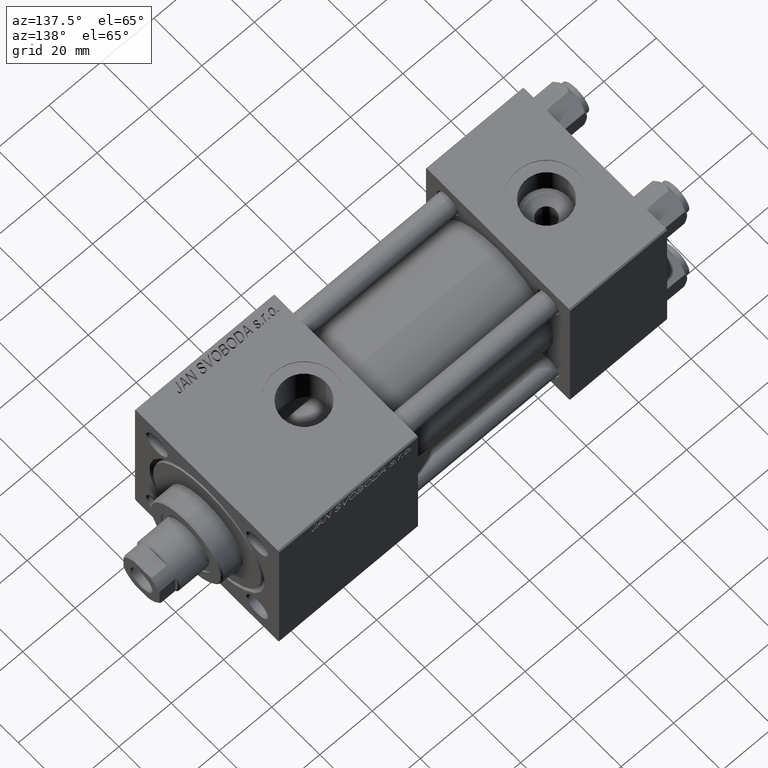
[diagram: clean part render]
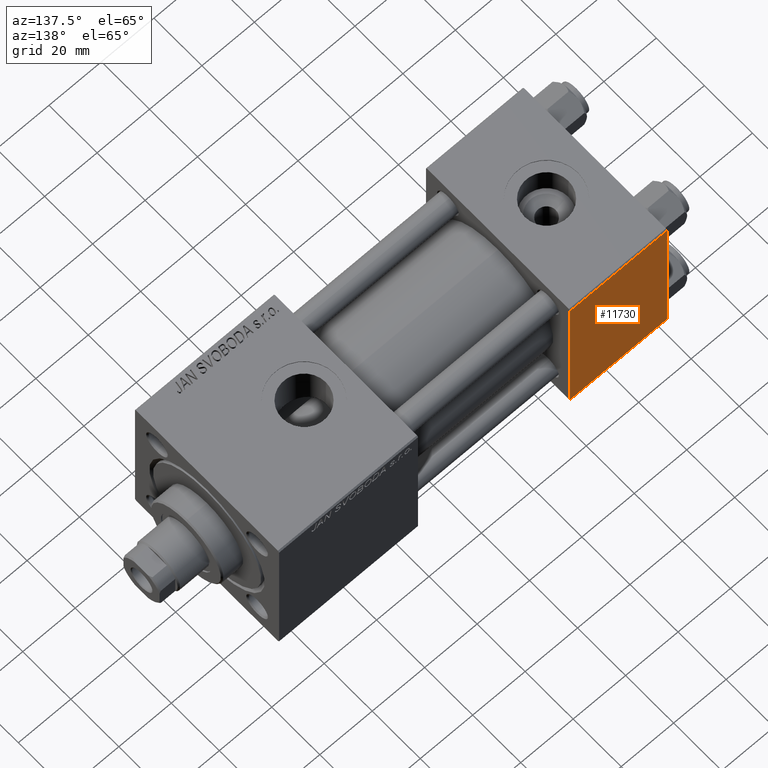
[diagram: same view with one face highlighted and labeled with its STEP entity id]
A machine part, auxiliary view. The second image highlights one B-rep face of the part: STEP entity #11730.
In plain terms, the highlighted planar face has unit normal (0, 1, 0).
Its self-contained STEP definition (entity closure, byte-faithful):
#1575 = VECTOR ( 'NONE', #38880, 1000.000000000000000 ) ;
#1720 = VERTEX_POINT ( 'NONE', #17487 ) ;
#1798 = EDGE_CURVE ( 'NONE', #1720, #18395, #34257, .T. ) ;
#2511 = DIRECTION ( 'NONE',  ( 0.000000000000000000, 0.000000000000000000, -1.000000000000000000 ) ) ;
#7672 = VECTOR ( 'NONE', #27604, 1000.000000000000000 ) ;
#11730 = ADVANCED_FACE ( 'NONE', ( #40892 ), #23848, .T. ) ;
#12562 = DIRECTION ( 'NONE',  ( -0.000000000000000000, 1.000000000000000000, 0.000000000000000000 ) ) ;
#12662 = ORIENTED_EDGE ( 'NONE', *, *, #19239, .T. ) ;
#12885 = CARTESIAN_POINT ( 'NONE',  ( 37.00000000000000000, 29.99999999999999289, 29.50000000000000000 ) ) ;
#14423 = ORIENTED_EDGE ( 'NONE', *, *, #50524, .T. ) ;
#14530 = EDGE_LOOP ( 'NONE', ( #12662, #33522, #31171, #14423 ) ) ;
#17487 = CARTESIAN_POINT ( 'NONE',  ( 37.00000000000000000, 29.99999999999999289, -29.50000000000000000 ) ) ;
#18395 = VERTEX_POINT ( 'NONE', #44476 ) ;
#19239 = EDGE_CURVE ( 'NONE', #40917, #1720, #30338, .T. ) ;
#19472 = CARTESIAN_POINT ( 'NONE',  ( 0.000000000000000000, 29.99999999999999289, 30.00000000000000000 ) ) ;
#23848 = PLANE ( 'NONE',  #36511 ) ;
#25053 = CARTESIAN_POINT ( 'NONE',  ( 37.00000000000000000, 29.99999999999999289, 29.50000000000000000 ) ) ;
#27604 = DIRECTION ( 'NONE',  ( -1.000000000000000000, 0.000000000000000000, 0.000000000000000000 ) ) ;
#30292 = EDGE_CURVE ( 'NONE', #39300, #18395, #31537, .T. ) ;
#30338 = LINE ( 'NONE', #38196, #34013 ) ;
#31171 = ORIENTED_EDGE ( 'NONE', *, *, #30292, .F. ) ;
#31537 = LINE ( 'NONE', #19472, #1575 ) ;
#32662 = LINE ( 'NONE', #25053, #46993 ) ;
#33522 = ORIENTED_EDGE ( 'NONE', *, *, #1798, .T. ) ;
#34013 = VECTOR ( 'NONE', #2511, 1000.000000000000000 ) ;
#34257 = LINE ( 'NONE', #39666, #7672 ) ;
#36511 = AXIS2_PLACEMENT_3D ( 'NONE', #40631, #12562, #39846 ) ;
#38196 = CARTESIAN_POINT ( 'NONE',  ( 37.00000000000000000, 29.99999999999999289, 30.00000000000000000 ) ) ;
#38218 = CARTESIAN_POINT ( 'NONE',  ( 0.000000000000000000, 29.99999999999999289, 29.50000000000000000 ) ) ;
#38880 = DIRECTION ( 'NONE',  ( 0.000000000000000000, 0.000000000000000000, -1.000000000000000000 ) ) ;
#39300 = VERTEX_POINT ( 'NONE', #38218 ) ;
#39666 = CARTESIAN_POINT ( 'NONE',  ( 37.00000000000000000, 29.99999999999999289, -29.50000000000000000 ) ) ;
#39846 = DIRECTION ( 'NONE',  ( 0.000000000000000000, -0.000000000000000000, 1.000000000000000000 ) ) ;
#40631 = CARTESIAN_POINT ( 'NONE',  ( 37.00000000000000000, 29.99999999999999289, 30.00000000000000000 ) ) ;
#40892 = FACE_OUTER_BOUND ( 'NONE', #14530, .T. ) ;
#40917 = VERTEX_POINT ( 'NONE', #12885 ) ;
#44476 = CARTESIAN_POINT ( 'NONE',  ( 0.000000000000000000, 29.99999999999999289, -29.50000000000000000 ) ) ;
#46993 = VECTOR ( 'NONE', #48422, 1000.000000000000000 ) ;
#48422 = DIRECTION ( 'NONE',  ( 1.000000000000000000, 0.000000000000000000, 0.000000000000000000 ) ) ;
#50524 = EDGE_CURVE ( 'NONE', #39300, #40917, #32662, .T. ) ;